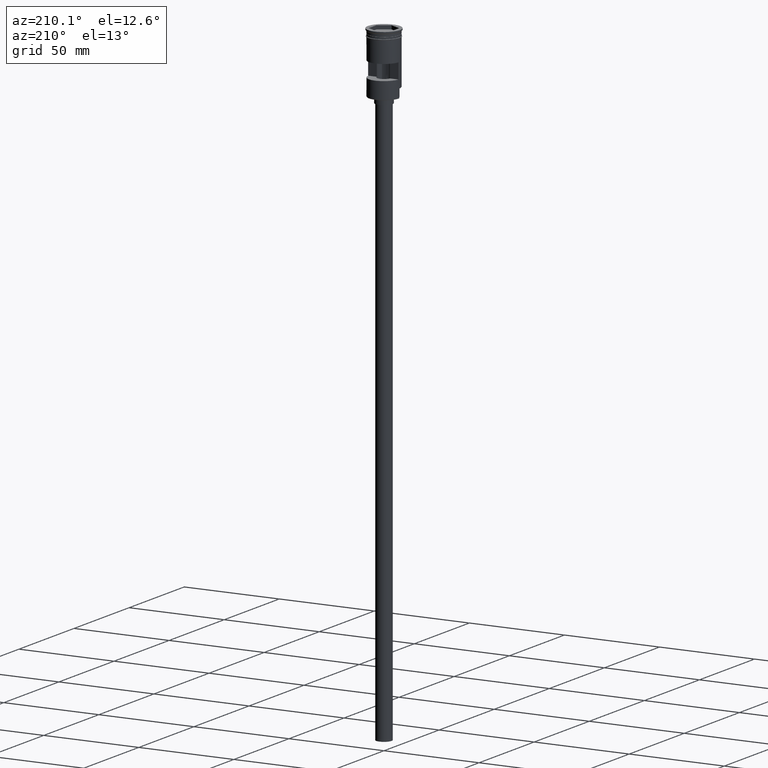
[diagram: clean part render]
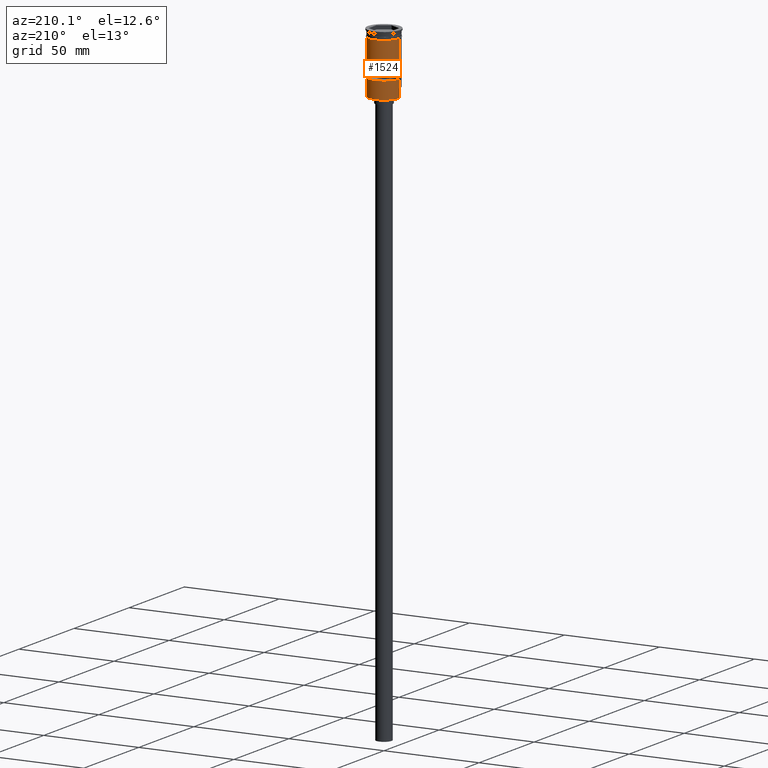
[diagram: same view with one face highlighted and labeled with its STEP entity id]
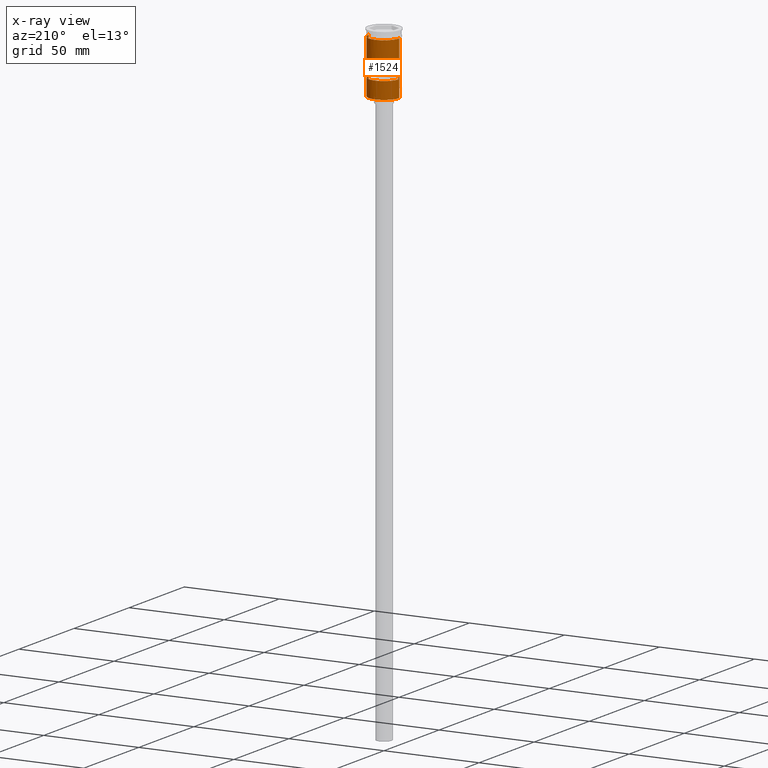
[diagram: x-ray of the same camera — body ghosted, the highlighted face saturated]
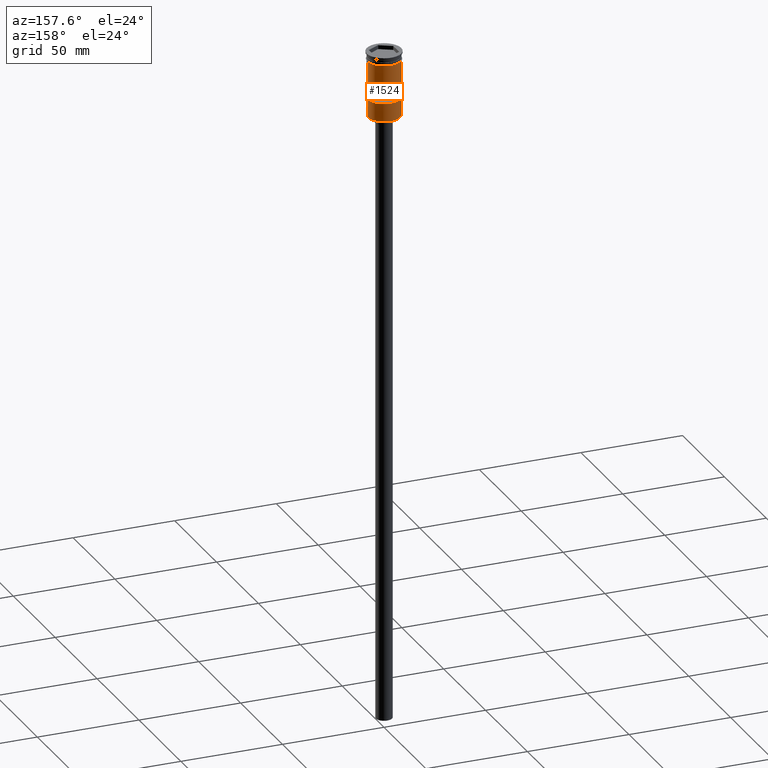
[diagram: same view with one face highlighted and labeled with its STEP entity id]
A machine part, auxiliary view. The second image highlights one B-rep face of the part: STEP entity #1524.
The next image is the same camera in x-ray: the body ghosted, the highlighted face saturated — about 0% of this face is hidden behind the body in this view.
A second angle (auxiliary view) of the same face is appended — the face is thin or edge-on in the first view.
In plain terms, the highlighted cylindrical surface (edge-blend (fillet) strip) has radius 8 mm, axis along (-0, -0, 1).
Its self-contained STEP definition (entity closure, byte-faithful):
#40 = EDGE_CURVE ( 'NONE', #866, #788, #1429, .T. ) ;
#50 = DIRECTION ( 'NONE',  ( -0.000000000000000000, 2.344220913482172642E-16, -1.000000000000000000 ) ) ;
#63 = VECTOR ( 'NONE', #978, 1000.000000000000000 ) ;
#77 = DIRECTION ( 'NONE',  ( -0.000000000000000000, -0.000000000000000000, 1.000000000000000000 ) ) ;
#79 = EDGE_CURVE ( 'NONE', #348, #538, #987, .T. ) ;
#96 = CARTESIAN_POINT ( 'NONE',  ( -7.999999999999992895, 0.000000000000000000, -32.00000000000000000 ) ) ;
#107 = EDGE_CURVE ( 'NONE', #654, #693, #850, .T. ) ;
#112 = DIRECTION ( 'NONE',  ( -1.000000000000000000, 0.000000000000000000, 0.000000000000000000 ) ) ;
#114 = DIRECTION ( 'NONE',  ( 0.000000000000000000, 0.000000000000000000, -1.000000000000000000 ) ) ;
#132 = EDGE_CURVE ( 'NONE', #788, #1419, #247, .T. ) ;
#224 = LINE ( 'NONE', #96, #1450 ) ;
#227 = CARTESIAN_POINT ( 'NONE',  ( -8.000000000000000000, 9.797174393178825657E-16, -3.999999999999997335 ) ) ;
#247 = LINE ( 'NONE', #723, #1562 ) ;
#251 = ORIENTED_EDGE ( 'NONE', *, *, #672, .F. ) ;
#294 = CARTESIAN_POINT ( 'NONE',  ( 7.977468270071646828, 0.6000000000000000888, -15.00000000000000000 ) ) ;
#348 = VERTEX_POINT ( 'NONE', #1460 ) ;
#349 = EDGE_CURVE ( 'NONE', #538, #654, #224, .T. ) ;
#366 = AXIS2_PLACEMENT_3D ( 'NONE', #1498, #50, #611 ) ;
#379 = DIRECTION ( 'NONE',  ( -0.000000000000000000, -0.000000000000000000, 1.000000000000000000 ) ) ;
#380 = CARTESIAN_POINT ( 'NONE',  ( -7.977468270071648604, 0.6000000000000000888, -23.00000000000000000 ) ) ;
#422 = EDGE_LOOP ( 'NONE', ( #940, #837, #251, #902 ) ) ;
#445 = DIRECTION ( 'NONE',  ( -0.000000000000000000, -0.000000000000000000, 1.000000000000000000 ) ) ;
#450 = CARTESIAN_POINT ( 'NONE',  ( -7.977468270071648604, 0.6000000000000000888, -15.00000000000000000 ) ) ;
#461 = DIRECTION ( 'NONE',  ( -0.000000000000000000, -0.000000000000000000, 1.000000000000000000 ) ) ;
#474 = AXIS2_PLACEMENT_3D ( 'NONE', #551, #879, #1342 ) ;
#493 = CYLINDRICAL_SURFACE ( 'NONE', #1386, 7.999999999999996447 ) ;
#510 = AXIS2_PLACEMENT_3D ( 'NONE', #593, #715, #112 ) ;
#538 = VERTEX_POINT ( 'NONE', #1382 ) ;
#551 = CARTESIAN_POINT ( 'NONE',  ( 0.000000000000000000, 0.000000000000000000, -31.80000000000003624 ) ) ;
#558 = FACE_OUTER_BOUND ( 'NONE', #1415, .T. ) ;
#568 = CARTESIAN_POINT ( 'NONE',  ( 7.999999999999996447, 0.000000000000000000, 0.000000000000000000 ) ) ;
#574 = LINE ( 'NONE', #568, #993 ) ;
#585 = EDGE_CURVE ( 'NONE', #628, #693, #1283, .T. ) ;
#593 = CARTESIAN_POINT ( 'NONE',  ( 0.000000000000000000, 0.000000000000000000, -23.00000000000000000 ) ) ;
#608 = AXIS2_PLACEMENT_3D ( 'NONE', #1231, #957, #711 ) ;
#611 = DIRECTION ( 'NONE',  ( 0.000000000000000000, -1.000000000000000000, -2.168404344971009854E-16 ) ) ;
#614 = ORIENTED_EDGE ( 'NONE', *, *, #349, .T. ) ;
#628 = VERTEX_POINT ( 'NONE', #845 ) ;
#654 = VERTEX_POINT ( 'NONE', #1214 ) ;
#672 = EDGE_CURVE ( 'NONE', #1140, #866, #828, .T. ) ;
#693 = VERTEX_POINT ( 'NONE', #227 ) ;
#708 = CIRCLE ( 'NONE', #510, 7.999999999999996447 ) ;
#711 = DIRECTION ( 'NONE',  ( 1.000000000000000000, 0.000000000000000000, 0.000000000000000000 ) ) ;
#715 = DIRECTION ( 'NONE',  ( 0.000000000000000000, 0.000000000000000000, 1.000000000000000000 ) ) ;
#723 = CARTESIAN_POINT ( 'NONE',  ( 7.977468270071648604, 0.6000000000000000888, 0.000000000000000000 ) ) ;
#743 = CARTESIAN_POINT ( 'NONE',  ( 7.977468270071646828, 0.6000000000000000888, -23.00000000000000000 ) ) ;
#788 = VERTEX_POINT ( 'NONE', #294 ) ;
#828 = LINE ( 'NONE', #961, #1431 ) ;
#837 = ORIENTED_EDGE ( 'NONE', *, *, #40, .F. ) ;
#845 = CARTESIAN_POINT ( 'NONE',  ( 8.000000000000000000, 0.000000000000000000, -3.999999999999997335 ) ) ;
#850 = LINE ( 'NONE', #1360, #63 ) ;
#859 = CARTESIAN_POINT ( 'NONE',  ( 0.000000000000000000, 0.000000000000000000, 0.000000000000000000 ) ) ;
#866 = VERTEX_POINT ( 'NONE', #450 ) ;
#879 = DIRECTION ( 'NONE',  ( 0.000000000000000000, 0.000000000000000000, 1.000000000000000000 ) ) ;
#902 = ORIENTED_EDGE ( 'NONE', *, *, #1220, .F. ) ;
#909 = CARTESIAN_POINT ( 'NONE',  ( 7.999999999999996447, 9.797174393178821713E-16, -27.30000000000006466 ) ) ;
#940 = ORIENTED_EDGE ( 'NONE', *, *, #132, .F. ) ;
#950 = ORIENTED_EDGE ( 'NONE', *, *, #975, .F. ) ;
#957 = DIRECTION ( 'NONE',  ( -0.000000000000000000, -0.000000000000000000, 1.000000000000000000 ) ) ;
#961 = CARTESIAN_POINT ( 'NONE',  ( -7.977468270071648604, 0.6000000000000000888, 0.000000000000000000 ) ) ;
#975 = EDGE_CURVE ( 'NONE', #1603, #628, #574, .T. ) ;
#978 = DIRECTION ( 'NONE',  ( -0.000000000000000000, -0.000000000000000000, 1.000000000000000000 ) ) ;
#983 = EDGE_CURVE ( 'NONE', #348, #1603, #1317, .T. ) ;
#987 = CIRCLE ( 'NONE', #474, 7.999999999999996447 ) ;
#993 = VECTOR ( 'NONE', #445, 1000.000000000000000 ) ;
#1083 = ORIENTED_EDGE ( 'NONE', *, *, #585, .F. ) ;
#1140 = VERTEX_POINT ( 'NONE', #380 ) ;
#1164 = ORIENTED_EDGE ( 'NONE', *, *, #79, .T. ) ;
#1178 = VECTOR ( 'NONE', #77, 1000.000000000000000 ) ;
#1185 = CARTESIAN_POINT ( 'NONE',  ( 7.999999999999992895, 9.797174393178817769E-16, -32.00000000000000000 ) ) ;
#1214 = CARTESIAN_POINT ( 'NONE',  ( -7.999999999999992895, 0.000000000000000000, -27.30000000000006466 ) ) ;
#1220 = EDGE_CURVE ( 'NONE', #1419, #1140, #708, .T. ) ;
#1231 = CARTESIAN_POINT ( 'NONE',  ( 0.000000000000000000, 0.000000000000000000, -3.999999999999997335 ) ) ;
#1283 = CIRCLE ( 'NONE', #608, 8.000000000000000000 ) ;
#1294 = FACE_BOUND ( 'NONE', #422, .T. ) ;
#1317 = LINE ( 'NONE', #1185, #1178 ) ;
#1323 = ORIENTED_EDGE ( 'NONE', *, *, #107, .T. ) ;
#1342 = DIRECTION ( 'NONE',  ( -1.000000000000000000, 0.000000000000000000, 0.000000000000000000 ) ) ;
#1343 = DIRECTION ( 'NONE',  ( -0.000000000000000000, -0.000000000000000000, 1.000000000000000000 ) ) ;
#1360 = CARTESIAN_POINT ( 'NONE',  ( -7.999999999999996447, 9.797174393178821713E-16, 0.000000000000000000 ) ) ;
#1382 = CARTESIAN_POINT ( 'NONE',  ( -7.999999999999992895, 0.000000000000000000, -31.80000000000003624 ) ) ;
#1386 = AXIS2_PLACEMENT_3D ( 'NONE', #859, #379, #1408 ) ;
#1408 = DIRECTION ( 'NONE',  ( 1.000000000000000000, 0.000000000000000000, 0.000000000000000000 ) ) ;
#1415 = EDGE_LOOP ( 'NONE', ( #614, #1323, #1083, #950, #1571, #1164 ) ) ;
#1419 = VERTEX_POINT ( 'NONE', #743 ) ;
#1429 = CIRCLE ( 'NONE', #366, 7.999999999999996447 ) ;
#1431 = VECTOR ( 'NONE', #1343, 1000.000000000000000 ) ;
#1450 = VECTOR ( 'NONE', #461, 1000.000000000000000 ) ;
#1460 = CARTESIAN_POINT ( 'NONE',  ( 7.999999999999992895, 9.797174393178817769E-16, -31.80000000000003624 ) ) ;
#1498 = CARTESIAN_POINT ( 'NONE',  ( 0.000000000000000000, 0.000000000000000000, -15.00000000000000000 ) ) ;
#1524 = ADVANCED_FACE ( 'NONE', ( #1294, #558 ), #493, .T. ) ;
#1562 = VECTOR ( 'NONE', #114, 1000.000000000000000 ) ;
#1571 = ORIENTED_EDGE ( 'NONE', *, *, #983, .F. ) ;
#1603 = VERTEX_POINT ( 'NONE', #909 ) ;